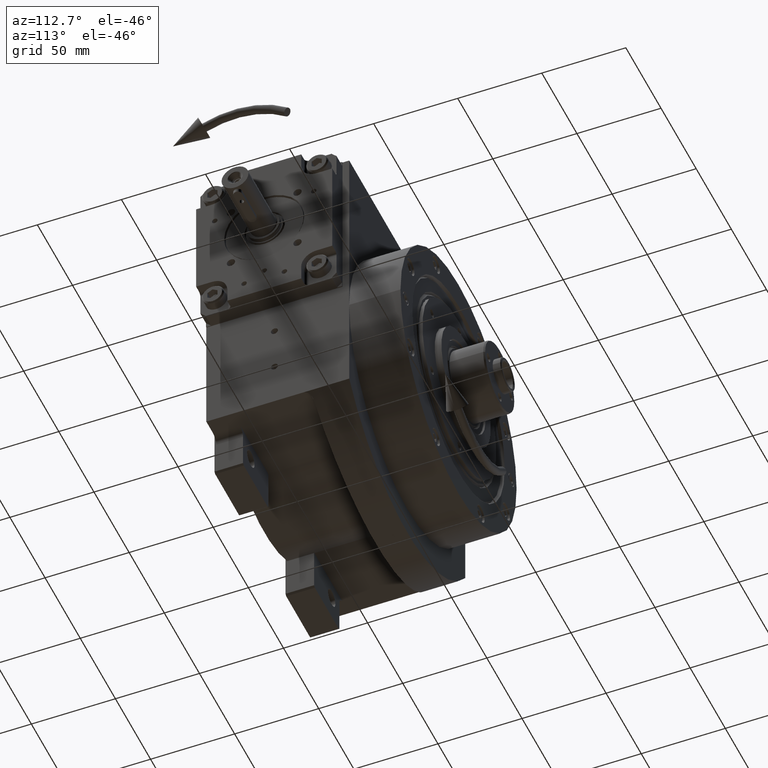
[diagram: clean part render]
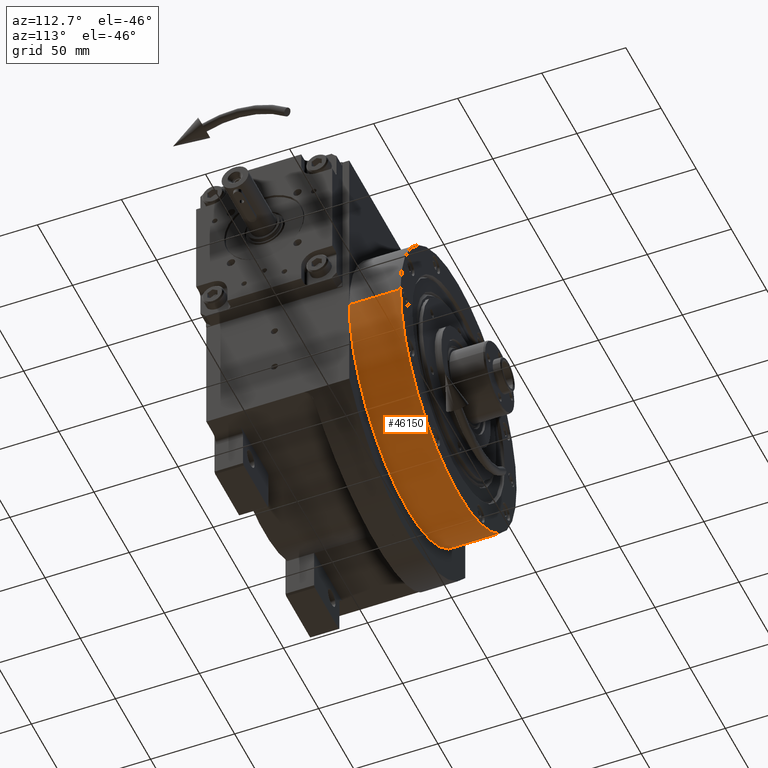
[diagram: same view with one face highlighted and labeled with its STEP entity id]
A machine part, auxiliary view. The second image highlights one B-rep face of the part: STEP entity #46150.
In plain terms, the highlighted cylindrical surface (partial cylindrical patch) has radius 82.5 mm, axis along (0, 1, 0).
Its self-contained STEP definition (entity closure, byte-faithful):
#2455 = CARTESIAN_POINT ( 'NONE',  ( -82.50000000000001421, 1.010322486831990379E-14, 0.000000000000000000 ) ) ;
#2862 = ORIENTED_EDGE ( 'NONE', *, *, #5659, .T. ) ;
#5659 = EDGE_CURVE ( 'NONE', #66414, #55393, #62968, .T. ) ;
#10632 = CARTESIAN_POINT ( 'NONE',  ( 0.000000000000000000, 0.000000000000000000, 0.000000000000000000 ) ) ;
#13381 = CARTESIAN_POINT ( 'NONE',  ( 82.49999999999998579, -1.010322486831990379E-14, 0.000000000000000000 ) ) ;
#20340 = CARTESIAN_POINT ( 'NONE',  ( 0.000000000000000000, 0.000000000000000000, 30.49999999999999289 ) ) ;
#22294 = DIRECTION ( 'NONE',  ( 1.000000000000000000, 0.000000000000000000, 0.000000000000000000 ) ) ;
#23066 = AXIS2_PLACEMENT_3D ( 'NONE', #10632, #32609, #51996 ) ;
#25900 = EDGE_CURVE ( 'NONE', #51022, #55393, #58326, .T. ) ;
#26631 = EDGE_CURVE ( 'NONE', #61691, #51022, #31017, .T. ) ;
#31017 = LINE ( 'NONE', #13381, #68697 ) ;
#31124 = EDGE_CURVE ( 'NONE', #61691, #66414, #70210, .T. ) ;
#32609 = DIRECTION ( 'NONE',  ( 0.000000000000000000, 0.000000000000000000, 1.000000000000000000 ) ) ;
#34214 = FACE_OUTER_BOUND ( 'NONE', #54115, .T. ) ;
#42319 = DIRECTION ( 'NONE',  ( 1.000000000000000000, 0.000000000000000000, 0.000000000000000000 ) ) ;
#42534 = AXIS2_PLACEMENT_3D ( 'NONE', #48993, #44962, #22294 ) ;
#44282 = CYLINDRICAL_SURFACE ( 'NONE', #42534, 82.50000000000000000 ) ;
#44962 = DIRECTION ( 'NONE',  ( 0.000000000000000000, 0.000000000000000000, 1.000000000000000000 ) ) ;
#45768 = CARTESIAN_POINT ( 'NONE',  ( 82.49999999999998579, -1.010300241903009221E-14, 0.000000000000000000 ) ) ;
#46150 = ADVANCED_FACE ( 'NONE', ( #34214 ), #44282, .T. ) ;
#46216 = ORIENTED_EDGE ( 'NONE', *, *, #25900, .F. ) ;
#47339 = CARTESIAN_POINT ( 'NONE',  ( -82.50000000000001421, 2.020633851199993078E-14, 30.49999999999999289 ) ) ;
#48993 = CARTESIAN_POINT ( 'NONE',  ( 0.000000000000000000, 0.000000000000000000, 0.000000000000000000 ) ) ;
#51022 = VERTEX_POINT ( 'NONE', #63898 ) ;
#51076 = DIRECTION ( 'NONE',  ( 0.000000000000000000, 0.000000000000000000, 1.000000000000000000 ) ) ;
#51838 = CARTESIAN_POINT ( 'NONE',  ( -82.50000000000001421, 2.020633851199993078E-14, 0.000000000000000000 ) ) ;
#51996 = DIRECTION ( 'NONE',  ( 1.000000000000000000, 0.000000000000000000, 0.000000000000000000 ) ) ;
#53605 = ORIENTED_EDGE ( 'NONE', *, *, #31124, .T. ) ;
#54115 = EDGE_LOOP ( 'NONE', ( #2862, #46216, #64053, #53605 ) ) ;
#55393 = VERTEX_POINT ( 'NONE', #47339 ) ;
#58326 = CIRCLE ( 'NONE', #59458, 82.50000000000000000 ) ;
#59458 = AXIS2_PLACEMENT_3D ( 'NONE', #20340, #63556, #42319 ) ;
#61691 = VERTEX_POINT ( 'NONE', #45768 ) ;
#62719 = DIRECTION ( 'NONE',  ( 0.000000000000000000, 0.000000000000000000, 1.000000000000000000 ) ) ;
#62968 = LINE ( 'NONE', #2455, #64887 ) ;
#63556 = DIRECTION ( 'NONE',  ( 0.000000000000000000, 0.000000000000000000, 1.000000000000000000 ) ) ;
#63898 = CARTESIAN_POINT ( 'NONE',  ( 82.49999999999998579, -1.010300241903009221E-14, 30.49999999999999289 ) ) ;
#64053 = ORIENTED_EDGE ( 'NONE', *, *, #26631, .F. ) ;
#64887 = VECTOR ( 'NONE', #51076, 1000.000000000000000 ) ;
#66414 = VERTEX_POINT ( 'NONE', #51838 ) ;
#68697 = VECTOR ( 'NONE', #62719, 1000.000000000000000 ) ;
#70210 = CIRCLE ( 'NONE', #23066, 82.50000000000000000 ) ;